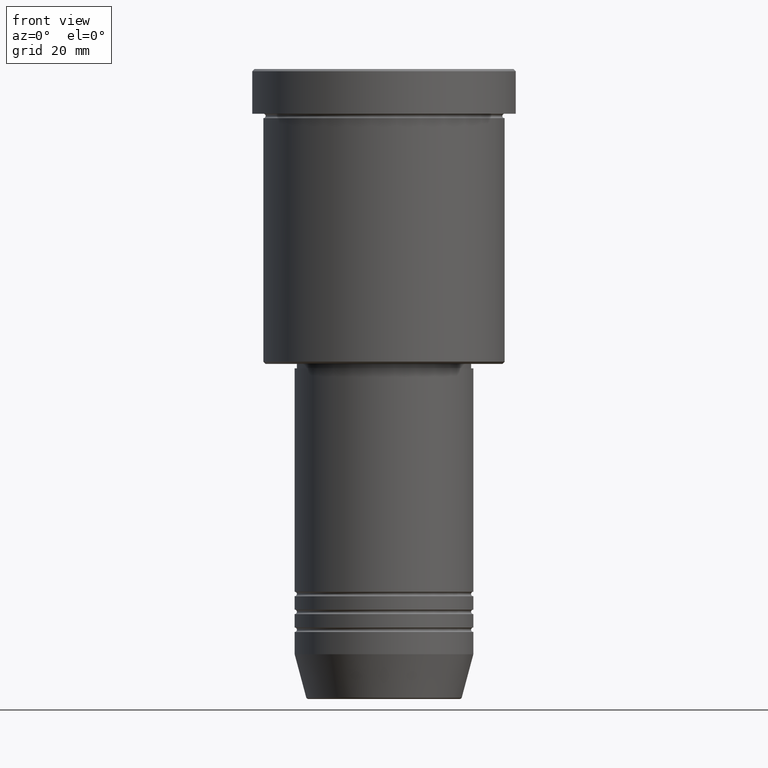
[diagram: clean part render]
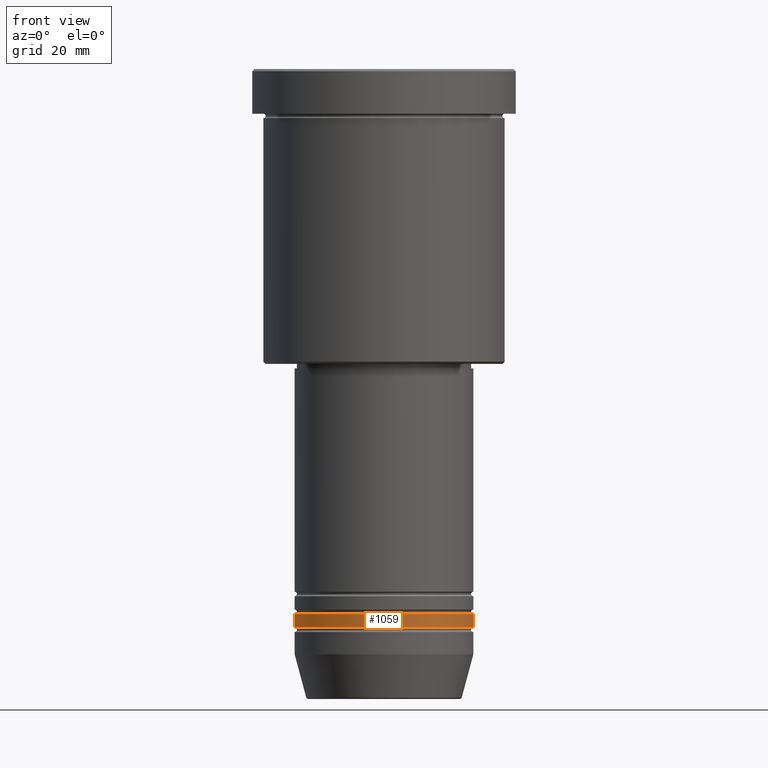
[diagram: same view with one face highlighted and labeled with its STEP entity id]
A machine part, front view. The second image highlights one B-rep face of the part: STEP entity #1059.
In plain terms, the highlighted cylindrical surface (partial cylindrical patch) has radius 20 mm, axis along (-0, -0, 1).
Its self-contained STEP definition (entity closure, byte-faithful):
#22 = DIRECTION ( 'NONE',  ( -0.000000000000000000, -0.000000000000000000, 1.000000000000000000 ) ) ;
#28 = LINE ( 'NONE', #501, #375 ) ;
#42 = DIRECTION ( 'NONE',  ( -0.000000000000000000, -0.000000000000000000, 1.000000000000000000 ) ) ;
#76 = ORIENTED_EDGE ( 'NONE', *, *, #319, .T. ) ;
#86 = CARTESIAN_POINT ( 'NONE',  ( 0.000000000000000000, 0.000000000000000000, 0.000000000000000000 ) ) ;
#118 = DIRECTION ( 'NONE',  ( 1.000000000000000000, 0.000000000000000000, 0.000000000000000000 ) ) ;
#138 = CARTESIAN_POINT ( 'NONE',  ( -20.00000000000000000, 2.449293598294706513E-15, -124.9999999999998863 ) ) ;
#271 = CARTESIAN_POINT ( 'NONE',  ( -20.00000000000000000, 2.449293598294706513E-15, -121.9999999999998863 ) ) ;
#274 = FACE_OUTER_BOUND ( 'NONE', #422, .T. ) ;
#319 = EDGE_CURVE ( 'NONE', #646, #506, #551, .T. ) ;
#367 = CYLINDRICAL_SURFACE ( 'NONE', #1079, 20.00000000000000000 ) ;
#371 = DIRECTION ( 'NONE',  ( -0.000000000000000000, -0.000000000000000000, 1.000000000000000000 ) ) ;
#375 = VECTOR ( 'NONE', #42, 1000.000000000000000 ) ;
#405 = VERTEX_POINT ( 'NONE', #411 ) ;
#411 = CARTESIAN_POINT ( 'NONE',  ( 20.00000000000000000, 0.000000000000000000, -121.9999999999998863 ) ) ;
#422 = EDGE_LOOP ( 'NONE', ( #1144, #76, #1129, #768 ) ) ;
#429 = CIRCLE ( 'NONE', #983, 20.00000000000000000 ) ;
#436 = DIRECTION ( 'NONE',  ( 1.000000000000000000, 0.000000000000000000, 0.000000000000000000 ) ) ;
#461 = DIRECTION ( 'NONE',  ( -0.000000000000000000, -0.000000000000000000, 1.000000000000000000 ) ) ;
#501 = CARTESIAN_POINT ( 'NONE',  ( -20.00000000000000000, 2.449293598294706513E-15, 0.000000000000000000 ) ) ;
#506 = VERTEX_POINT ( 'NONE', #977 ) ;
#515 = EDGE_CURVE ( 'NONE', #646, #1140, #28, .T. ) ;
#551 = CIRCLE ( 'NONE', #625, 20.00000000000000000 ) ;
#625 = AXIS2_PLACEMENT_3D ( 'NONE', #1091, #461, #118 ) ;
#646 = VERTEX_POINT ( 'NONE', #138 ) ;
#726 = DIRECTION ( 'NONE',  ( 1.000000000000000000, 0.000000000000000000, 0.000000000000000000 ) ) ;
#766 = EDGE_CURVE ( 'NONE', #506, #405, #1041, .T. ) ;
#768 = ORIENTED_EDGE ( 'NONE', *, *, #986, .F. ) ;
#936 = CARTESIAN_POINT ( 'NONE',  ( 20.00000000000000000, 0.000000000000000000, 0.000000000000000000 ) ) ;
#961 = VECTOR ( 'NONE', #22, 1000.000000000000000 ) ;
#970 = CARTESIAN_POINT ( 'NONE',  ( 0.000000000000000000, 0.000000000000000000, -121.9999999999998863 ) ) ;
#977 = CARTESIAN_POINT ( 'NONE',  ( 20.00000000000000000, 0.000000000000000000, -124.9999999999998863 ) ) ;
#981 = DIRECTION ( 'NONE',  ( -0.000000000000000000, -0.000000000000000000, 1.000000000000000000 ) ) ;
#983 = AXIS2_PLACEMENT_3D ( 'NONE', #970, #981, #436 ) ;
#986 = EDGE_CURVE ( 'NONE', #1140, #405, #429, .T. ) ;
#1041 = LINE ( 'NONE', #936, #961 ) ;
#1059 = ADVANCED_FACE ( 'NONE', ( #274 ), #367, .T. ) ;
#1079 = AXIS2_PLACEMENT_3D ( 'NONE', #86, #371, #726 ) ;
#1091 = CARTESIAN_POINT ( 'NONE',  ( 0.000000000000000000, 0.000000000000000000, -124.9999999999998863 ) ) ;
#1129 = ORIENTED_EDGE ( 'NONE', *, *, #766, .T. ) ;
#1140 = VERTEX_POINT ( 'NONE', #271 ) ;
#1144 = ORIENTED_EDGE ( 'NONE', *, *, #515, .F. ) ;